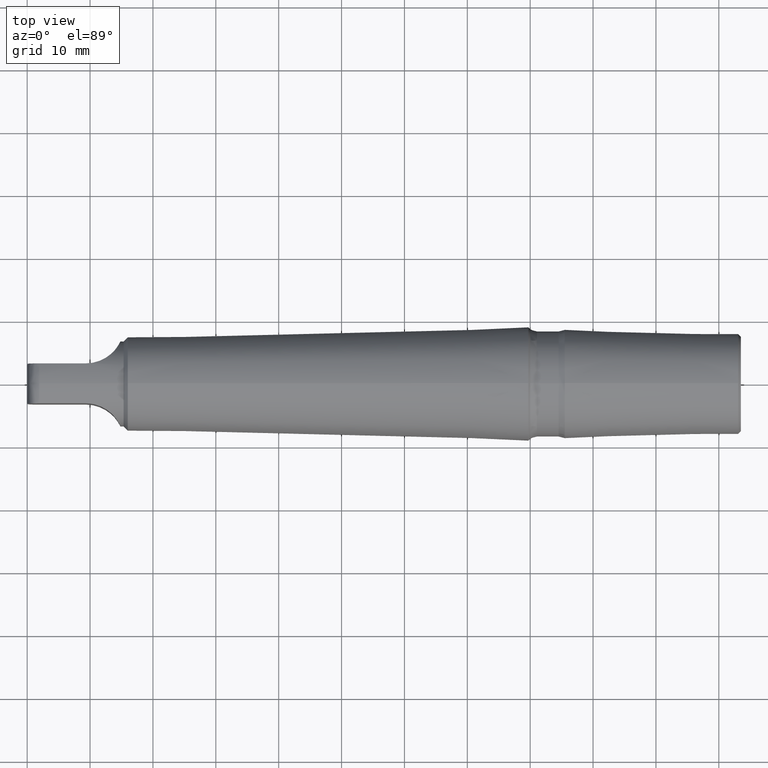
[diagram: clean part render]
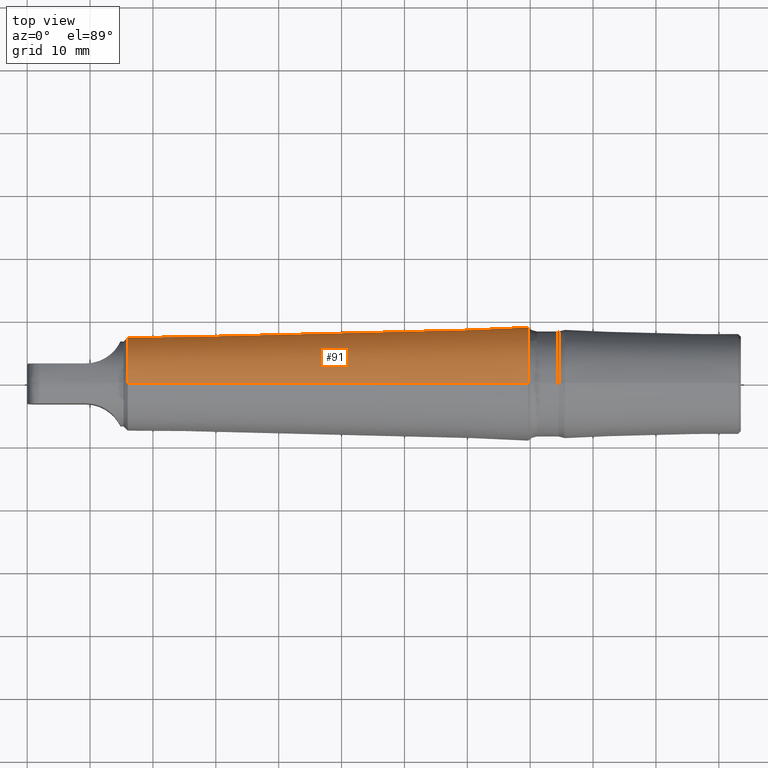
[diagram: same view with one face highlighted and labeled with its STEP entity id]
A machine part, top view. The second image highlights one B-rep face of the part: STEP entity #91.
In plain terms, the highlighted conical surface has half-angle 1.431 deg.
Its self-contained STEP definition (entity closure, byte-faithful):
#46 = AXIS2_PLACEMENT_3D ( 'NONE', #364, #920, #265 ) ;
#78 = CARTESIAN_POINT ( 'NONE',  ( 79.70009350500006900, 0.0000000000000000000, 0.0000000000000000000 ) ) ;
#87 = DIRECTION ( 'NONE',  ( -1.871182388477270600E-015, 0.0000000000000000000, -1.000000000000000000 ) ) ;
#91 = ADVANCED_FACE ( 'NONE', ( #244 ), #216, .T. ) ;
#130 = EDGE_CURVE ( 'NONE', #667, #1010, #494, .T. ) ;
#135 = ORIENTED_EDGE ( 'NONE', *, *, #130, .T. ) ;
#188 = CIRCLE ( 'NONE', #894, 7.416587444000000100 ) ;
#199 = EDGE_CURVE ( 'NONE', #578, #1015, #188, .T. ) ;
#215 = DIRECTION ( 'NONE',  ( 0.9996883180627111900, 3.057368760791976400E-018, 0.02496531051173804200 ) ) ;
#216 = CONICAL_SURFACE ( 'NONE', #762, 7.416587444000000100, 0.02496790458059912000 ) ;
#223 = DIRECTION ( 'NONE',  ( 0.0000000000000000000, 0.0000000000000000000, -1.000000000000000000 ) ) ;
#244 = FACE_OUTER_BOUND ( 'NONE', #397, .T. ) ;
#254 = CIRCLE ( 'NONE', #46, 9.007375877999999500 ) ;
#265 = DIRECTION ( 'NONE',  ( -6.162854973870984900E-015, 0.0000000000000000000, 1.000000000000000000 ) ) ;
#321 = CARTESIAN_POINT ( 'NONE',  ( 16.00000000000000000, 0.0000000000000000000, 0.0000000000000000000 ) ) ;
#330 = CARTESIAN_POINT ( 'NONE',  ( 16.00000000000001400, 0.0000000000000000000, 0.0000000000000000000 ) ) ;
#334 = ORIENTED_EDGE ( 'NONE', *, *, #199, .F. ) ;
#364 = CARTESIAN_POINT ( 'NONE',  ( 79.70009350500006900, 0.0000000000000000000, 0.0000000000000000000 ) ) ;
#382 = CARTESIAN_POINT ( 'NONE',  ( 79.70009350500006900, 1.103085403770978200E-015, 9.007375878000001300 ) ) ;
#397 = EDGE_LOOP ( 'NONE', ( #1021, #135, #1036, #1045, #589, #334 ) ) ;
#404 = EDGE_CURVE ( 'NONE', #576, #881, #567, .T. ) ;
#432 = DIRECTION ( 'NONE',  ( -1.871182388477270600E-015, 0.0000000000000000000, -1.000000000000000000 ) ) ;
#449 = LINE ( 'NONE', #637, #1162 ) ;
#466 = EDGE_CURVE ( 'NONE', #1010, #576, #254, .T. ) ;
#480 = AXIS2_PLACEMENT_3D ( 'NONE', #330, #990, #432 ) ;
#494 = LINE ( 'NONE', #1158, #933 ) ;
#529 = CARTESIAN_POINT ( 'NONE',  ( 16.00000000000001400, 7.416587444000016100, 0.0000000000000000000 ) ) ;
#536 = DIRECTION ( 'NONE',  ( -6.162854973870984900E-015, 0.0000000000000000000, 1.000000000000000000 ) ) ;
#567 = CIRCLE ( 'NONE', #570, 9.007375877999999500 ) ;
#570 = AXIS2_PLACEMENT_3D ( 'NONE', #78, #724, #536 ) ;
#575 = EDGE_CURVE ( 'NONE', #1015, #881, #449, .T. ) ;
#576 = VERTEX_POINT ( 'NONE', #1183 ) ;
#578 = VERTEX_POINT ( 'NONE', #529 ) ;
#588 = EDGE_CURVE ( 'NONE', #667, #578, #659, .T. ) ;
#589 = ORIENTED_EDGE ( 'NONE', *, *, #575, .F. ) ;
#632 = DIRECTION ( 'NONE',  ( 0.9996883180627111900, 0.0000000000000000000, -0.02496531051173804200 ) ) ;
#637 = CARTESIAN_POINT ( 'NONE',  ( 16.00000000000000000, 0.0000000000000000000, -7.416587444000000100 ) ) ;
#639 = CARTESIAN_POINT ( 'NONE',  ( 79.70009350500006900, 0.0000000000000000000, -9.007375878000001300 ) ) ;
#659 = CIRCLE ( 'NONE', #480, 7.416587444000000100 ) ;
#661 = CARTESIAN_POINT ( 'NONE',  ( 16.00000000000001400, 0.0000000000000000000, -7.416587444000000100 ) ) ;
#667 = VERTEX_POINT ( 'NONE', #917 ) ;
#692 = CARTESIAN_POINT ( 'NONE',  ( 16.00000000000001400, 0.0000000000000000000, 0.0000000000000000000 ) ) ;
#724 = DIRECTION ( 'NONE',  ( -1.000000000000000000, 0.0000000000000000000, 0.0000000000000000000 ) ) ;
#732 = DIRECTION ( 'NONE',  ( -1.000000000000000000, -0.0000000000000000000, -0.0000000000000000000 ) ) ;
#762 = AXIS2_PLACEMENT_3D ( 'NONE', #321, #872, #223 ) ;
#872 = DIRECTION ( 'NONE',  ( 1.000000000000000000, 0.0000000000000000000, 0.0000000000000000000 ) ) ;
#881 = VERTEX_POINT ( 'NONE', #639 ) ;
#894 = AXIS2_PLACEMENT_3D ( 'NONE', #692, #732, #87 ) ;
#917 = CARTESIAN_POINT ( 'NONE',  ( 16.00000000000001400, 1.005677705580041400E-015, 7.416587444000000100 ) ) ;
#920 = DIRECTION ( 'NONE',  ( -1.000000000000000000, 0.0000000000000000000, 0.0000000000000000000 ) ) ;
#933 = VECTOR ( 'NONE', #215, 1000.000000000000200 ) ;
#990 = DIRECTION ( 'NONE',  ( -1.000000000000000000, -0.0000000000000000000, -0.0000000000000000000 ) ) ;
#1010 = VERTEX_POINT ( 'NONE', #382 ) ;
#1015 = VERTEX_POINT ( 'NONE', #661 ) ;
#1021 = ORIENTED_EDGE ( 'NONE', *, *, #588, .F. ) ;
#1036 = ORIENTED_EDGE ( 'NONE', *, *, #466, .T. ) ;
#1045 = ORIENTED_EDGE ( 'NONE', *, *, #404, .T. ) ;
#1158 = CARTESIAN_POINT ( 'NONE',  ( 16.00000000000000000, 9.082700073891051500E-016, 7.416587444000000100 ) ) ;
#1162 = VECTOR ( 'NONE', #632, 1000.000000000000200 ) ;
#1183 = CARTESIAN_POINT ( 'NONE',  ( 79.70009350500006900, 9.007375877999932000, 1.103085403770969700E-015 ) ) ;